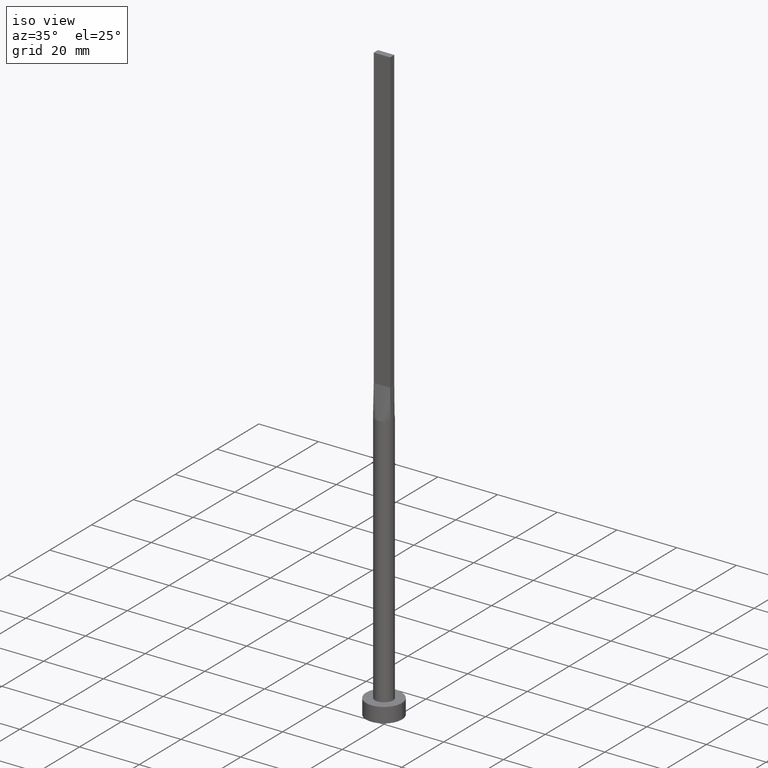
[diagram: clean part render]
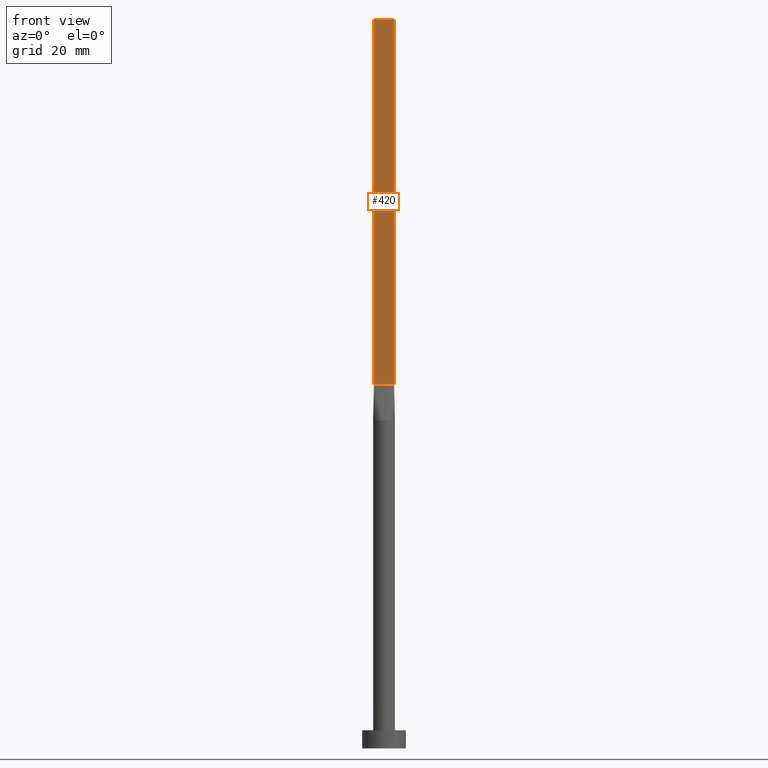
[diagram: tour spotlight — one face highlighted and labeled with its STEP entity id]
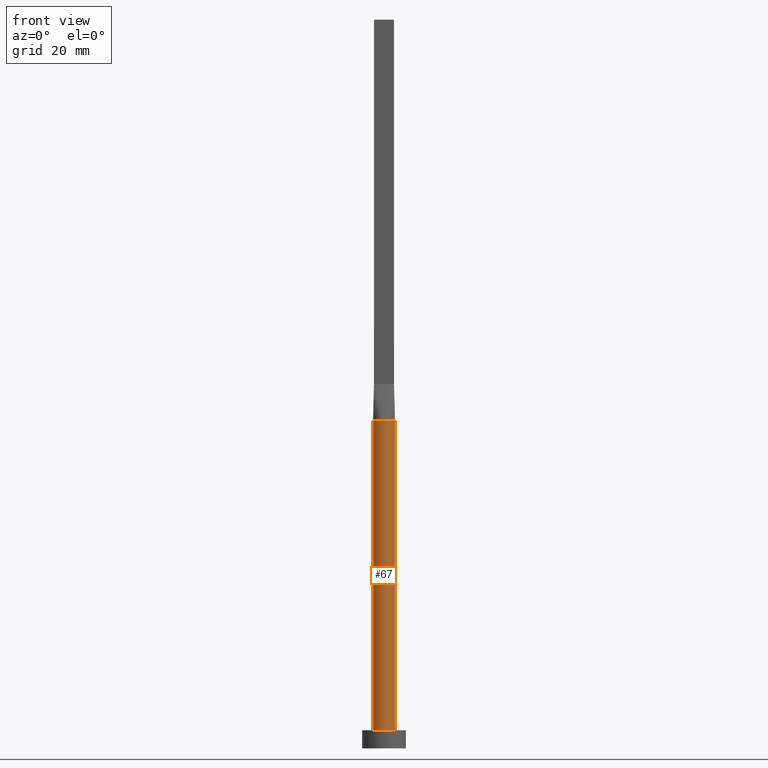
[diagram: tour spotlight — one face highlighted and labeled with its STEP entity id]
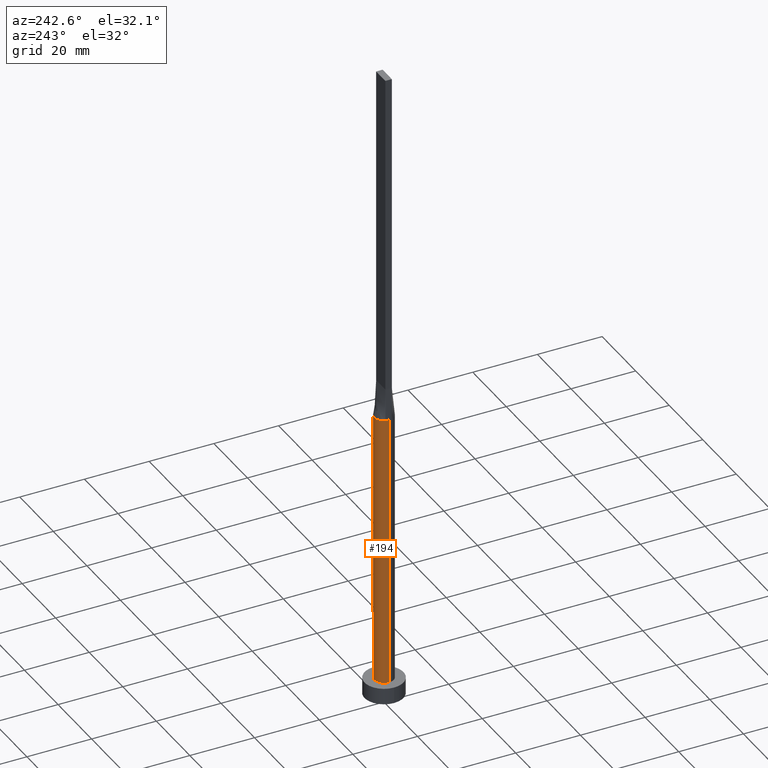
[diagram: tour spotlight — one face highlighted and labeled with its STEP entity id]
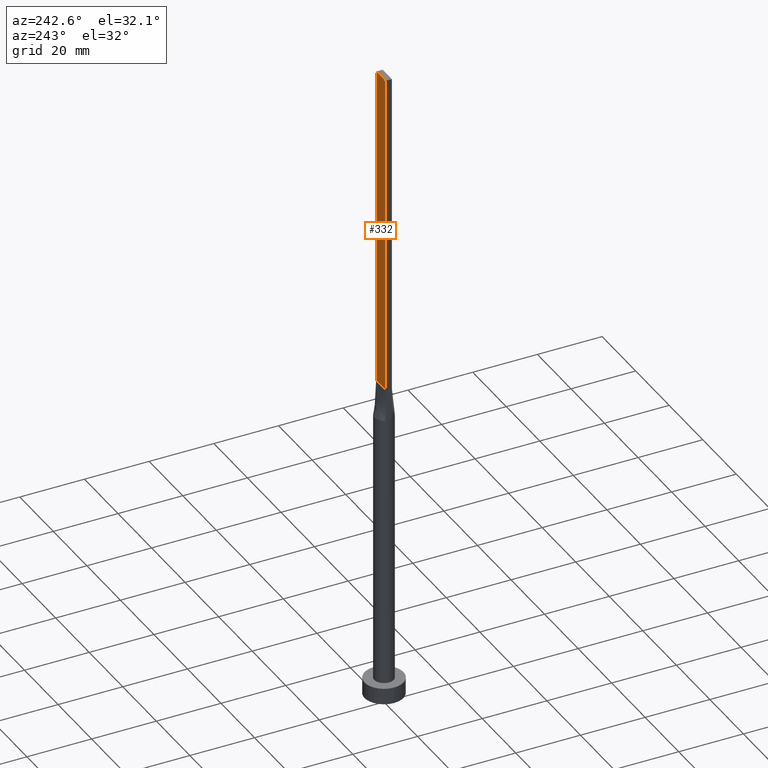
[diagram: tour spotlight — one face highlighted and labeled with its STEP entity id]
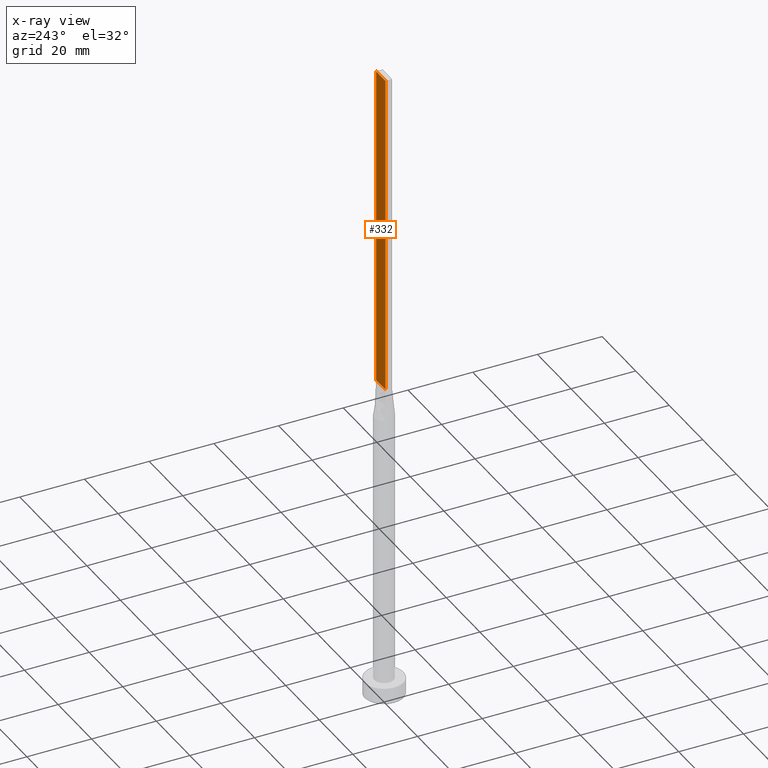
[diagram: x-ray of the same camera — body ghosted, this tour face saturated]
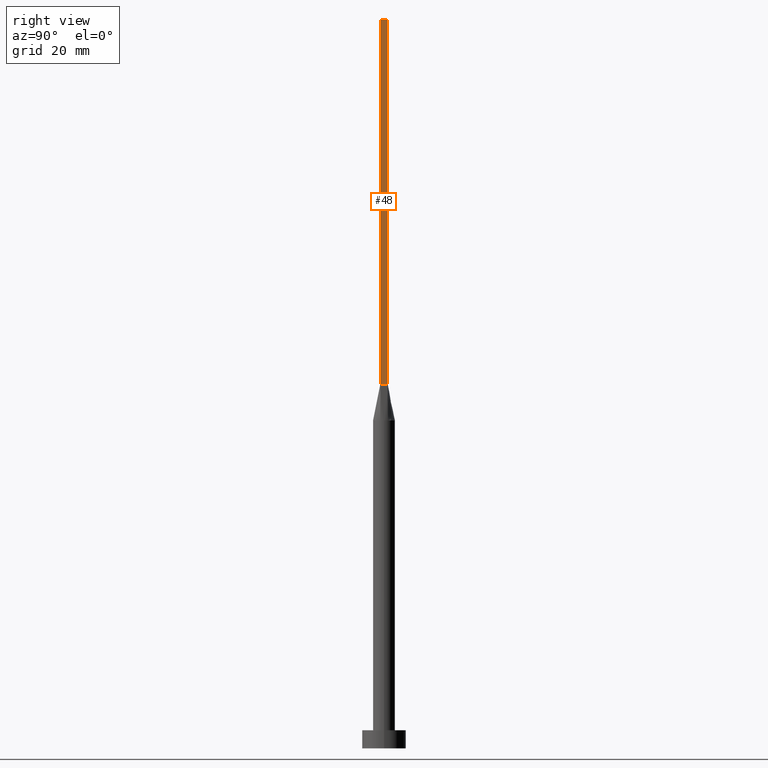
[diagram: tour spotlight — one face highlighted and labeled with its STEP entity id]
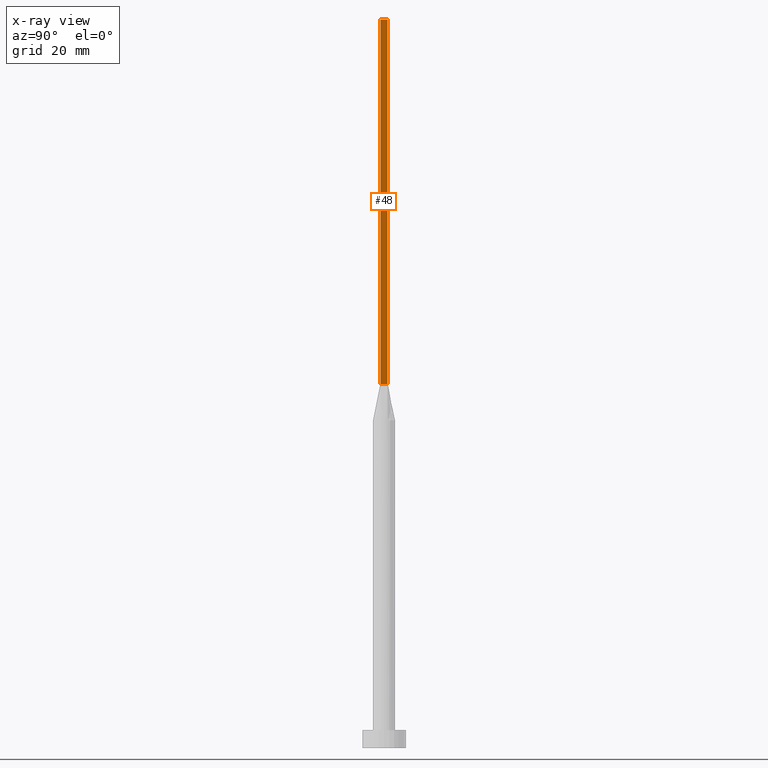
[diagram: x-ray of the same camera — body ghosted, this tour face saturated]
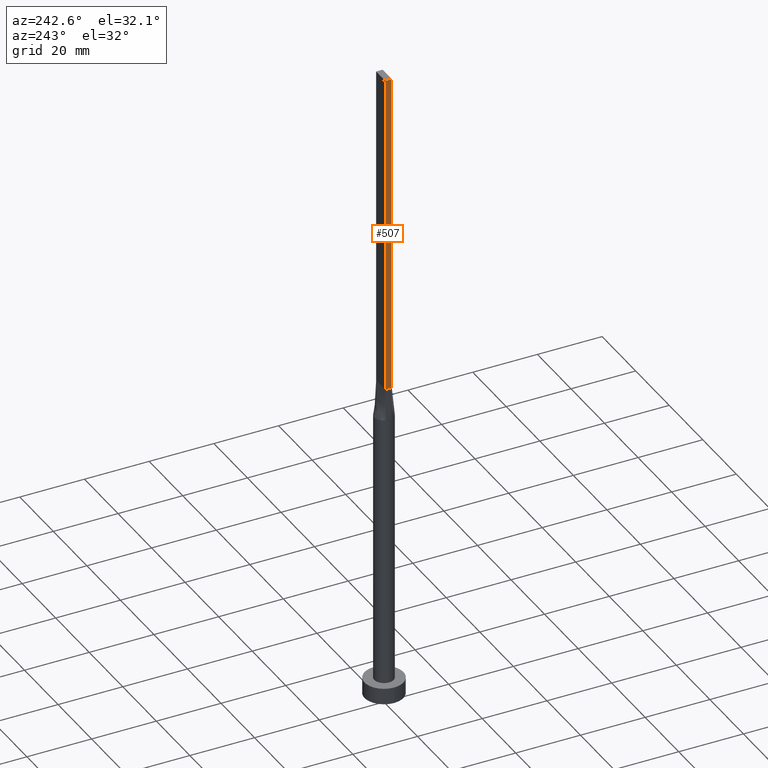
[diagram: tour spotlight — one face highlighted and labeled with its STEP entity id]
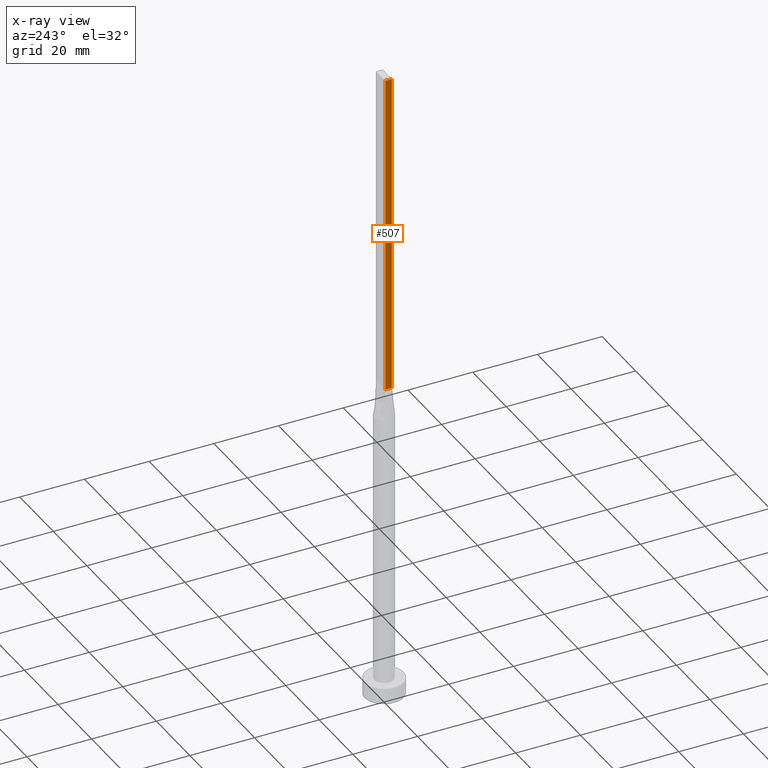
[diagram: x-ray of the same camera — body ghosted, this tour face saturated]
A machine part: a face-by-face anatomy tour. The part has 15 B-rep faces; the first image is the clean iso view, then the 6 largest visible faces are spotlighted one at a time (largest first), each with its STEP entity span.

Face 1 — front view, entity #420. In plain terms, the highlighted planar face has unit normal (0, 1, -0).
Definition (entity closure, byte-faithful):
#9 = DIRECTION ( 'NONE',  ( 7.885106708985487801E-17, 1.000000000000000000, -0.000000000000000000 ) ) ;
#16 = DIRECTION ( 'NONE',  ( 1.000000000000000000, -7.885106708985487801E-17, 0.000000000000000000 ) ) ;
#17 = VECTOR ( 'NONE', #16, 1000.000000000000000 ) ;
#32 = EDGE_CURVE ( 'NONE', #519, #377, #242, .T. ) ;
#45 = ORIENTED_EDGE ( 'NONE', *, *, #59, .F. ) ;
#54 = DIRECTION ( 'NONE',  ( -0.000000000000000000, -0.000000000000000000, -1.000000000000000000 ) ) ;
#58 = LINE ( 'NONE', #511, #310 ) ;
#59 = EDGE_CURVE ( 'NONE', #377, #382, #283, .T. ) ;
#98 = LINE ( 'NONE', #466, #512 ) ;
#126 = EDGE_CURVE ( 'NONE', #519, #235, #98, .T. ) ;
#130 = DIRECTION ( 'NONE',  ( -1.000000000000000000, 7.885106708985487801E-17, 0.000000000000000000 ) ) ;
#139 = AXIS2_PLACEMENT_3D ( 'NONE', #234, #9, #130 ) ;
#183 = ORIENTED_EDGE ( 'NONE', *, *, #318, .T. ) ;
#234 = CARTESIAN_POINT ( 'NONE',  ( -2.750000000000000000, -0.9999999999999993339, 200.0000000000000000 ) ) ;
#235 = VERTEX_POINT ( 'NONE', #533 ) ;
#237 = DIRECTION ( 'NONE',  ( 1.000000000000000000, -7.885106708985487801E-17, 0.000000000000000000 ) ) ;
#242 = LINE ( 'NONE', #313, #17 ) ;
#283 = LINE ( 'NONE', #427, #537 ) ;
#300 = PLANE ( 'NONE',  #139 ) ;
#310 = VECTOR ( 'NONE', #237, 1000.000000000000000 ) ;
#313 = CARTESIAN_POINT ( 'NONE',  ( -2.750000000000000000, -0.9999999999999993339, 200.0000000000000000 ) ) ;
#318 = EDGE_CURVE ( 'NONE', #235, #382, #58, .T. ) ;
#343 = CARTESIAN_POINT ( 'NONE',  ( 2.750000000000000000, -0.9999999999999997780, 100.0000000000000000 ) ) ;
#361 = DIRECTION ( 'NONE',  ( -0.000000000000000000, -0.000000000000000000, -1.000000000000000000 ) ) ;
#377 = VERTEX_POINT ( 'NONE', #397 ) ;
#382 = VERTEX_POINT ( 'NONE', #343 ) ;
#396 = CARTESIAN_POINT ( 'NONE',  ( -2.750000000000000000, -0.9999999999999993339, 200.0000000000000000 ) ) ;
#397 = CARTESIAN_POINT ( 'NONE',  ( 2.750000000000000000, -0.9999999999999997780, 200.0000000000000000 ) ) ;
#420 = ADVANCED_FACE ( 'NONE', ( #539 ), #300, .F. ) ;
#427 = CARTESIAN_POINT ( 'NONE',  ( 2.750000000000000000, -0.9999999999999997780, 200.0000000000000000 ) ) ;
#452 = EDGE_LOOP ( 'NONE', ( #183, #45, #516, #458 ) ) ;
#458 = ORIENTED_EDGE ( 'NONE', *, *, #126, .T. ) ;
#466 = CARTESIAN_POINT ( 'NONE',  ( -2.750000000000000000, -0.9999999999999993339, 200.0000000000000000 ) ) ;
#511 = CARTESIAN_POINT ( 'NONE',  ( -2.750000000000000000, -0.9999999999999993339, 100.0000000000000000 ) ) ;
#512 = VECTOR ( 'NONE', #54, 1000.000000000000000 ) ;
#516 = ORIENTED_EDGE ( 'NONE', *, *, #32, .F. ) ;
#519 = VERTEX_POINT ( 'NONE', #396 ) ;
#533 = CARTESIAN_POINT ( 'NONE',  ( -2.750000000000000000, -0.9999999999999993339, 100.0000000000000000 ) ) ;
#537 = VECTOR ( 'NONE', #361, 1000.000000000000000 ) ;
#539 = FACE_OUTER_BOUND ( 'NONE', #452, .T. ) ;

Face 2 — front view, entity #67. In plain terms, the highlighted cylindrical surface (edge-blend (fillet) strip) has radius 3 mm, axis along (-0, -0, -1).
Definition (entity closure, byte-faithful):
#5 = CARTESIAN_POINT ( 'NONE',  ( 3.000000000000000444, 3.673940397442060361E-16, 5.000000000000000000 ) ) ;
#10 = ORIENTED_EDGE ( 'NONE', *, *, #469, .F. ) ;
#14 = CIRCLE ( 'NONE', #71, 3.000000000000000444 ) ;
#18 = DIRECTION ( 'NONE',  ( 0.000000000000000000, 0.000000000000000000, 1.000000000000000000 ) ) ;
#22 = DIRECTION ( 'NONE',  ( 1.000000000000000000, 0.000000000000000000, 0.000000000000000000 ) ) ;
#37 = LINE ( 'NONE', #433, #258 ) ;
#53 = VERTEX_POINT ( 'NONE', #57 ) ;
#57 = CARTESIAN_POINT ( 'NONE',  ( 3.000000000000000444, 7.514166843208536743E-18, 90.00000000000001421 ) ) ;
#67 = ADVANCED_FACE ( 'NONE', ( #197 ), #143, .T. ) ;
#71 = AXIS2_PLACEMENT_3D ( 'NONE', #264, #351, #538 ) ;
#74 = LINE ( 'NONE', #262, #189 ) ;
#83 = VERTEX_POINT ( 'NONE', #238 ) ;
#87 = EDGE_CURVE ( 'NONE', #83, #478, #227, .T. ) ;
#96 = DIRECTION ( 'NONE',  ( -0.000000000000000000, -0.000000000000000000, -1.000000000000000000 ) ) ;
#132 = DIRECTION ( 'NONE',  ( 0.000000000000000000, 0.000000000000000000, 1.000000000000000000 ) ) ;
#143 = CYLINDRICAL_SURFACE ( 'NONE', #354, 3.000000000000000444 ) ;
#145 = ORIENTED_EDGE ( 'NONE', *, *, #185, .T. ) ;
#155 = CARTESIAN_POINT ( 'NONE',  ( 0.000000000000000000, 0.000000000000000000, 5.000000000000000000 ) ) ;
#167 = VERTEX_POINT ( 'NONE', #499 ) ;
#182 = CARTESIAN_POINT ( 'NONE',  ( 0.000000000000000000, 0.000000000000000000, 90.00000000000001421 ) ) ;
#185 = EDGE_CURVE ( 'NONE', #167, #83, #74, .T. ) ;
#189 = VECTOR ( 'NONE', #249, 1000.000000000000000 ) ;
#193 = ORIENTED_EDGE ( 'NONE', *, *, #395, .F. ) ;
#197 = FACE_OUTER_BOUND ( 'NONE', #413, .T. ) ;
#203 = ORIENTED_EDGE ( 'NONE', *, *, #289, .F. ) ;
#209 = ORIENTED_EDGE ( 'NONE', *, *, #87, .T. ) ;
#214 = AXIS2_PLACEMENT_3D ( 'NONE', #182, #132, #356 ) ;
#224 = VERTEX_POINT ( 'NONE', #495 ) ;
#225 = CIRCLE ( 'NONE', #498, 3.000000000000000444 ) ;
#227 = CIRCLE ( 'NONE', #558, 3.000000000000000444 ) ;
#231 = EDGE_CURVE ( 'NONE', #445, #53, #14, .T. ) ;
#232 = DIRECTION ( 'NONE',  ( 0.000000000000000000, 0.000000000000000000, 1.000000000000000000 ) ) ;
#238 = CARTESIAN_POINT ( 'NONE',  ( -3.000000000000000444, 0.000000000000000000, 5.000000000000000000 ) ) ;
#249 = DIRECTION ( 'NONE',  ( -0.000000000000000000, -0.000000000000000000, -1.000000000000000000 ) ) ;
#258 = VECTOR ( 'NONE', #295, 1000.000000000000000 ) ;
#262 = CARTESIAN_POINT ( 'NONE',  ( -3.000000000000000444, 0.000000000000000000, 90.00000000000001421 ) ) ;
#264 = CARTESIAN_POINT ( 'NONE',  ( 0.000000000000000000, 0.000000000000000000, 90.00000000000001421 ) ) ;
#285 = CARTESIAN_POINT ( 'NONE',  ( 0.000000000000000000, 0.000000000000000000, 90.00000000000001421 ) ) ;
#289 = EDGE_CURVE ( 'NONE', #167, #224, #225, .T. ) ;
#295 = DIRECTION ( 'NONE',  ( -0.000000000000000000, -0.000000000000000000, -1.000000000000000000 ) ) ;
#351 = DIRECTION ( 'NONE',  ( 0.000000000000000000, 0.000000000000000000, 1.000000000000000000 ) ) ;
#354 = AXIS2_PLACEMENT_3D ( 'NONE', #549, #96, #373 ) ;
#356 = DIRECTION ( 'NONE',  ( 1.000000000000000000, 0.000000000000000000, 0.000000000000000000 ) ) ;
#373 = DIRECTION ( 'NONE',  ( -1.000000000000000000, 0.000000000000000000, 0.000000000000000000 ) ) ;
#395 = EDGE_CURVE ( 'NONE', #53, #478, #37, .T. ) ;
#413 = EDGE_LOOP ( 'NONE', ( #193, #534, #10, #203, #145, #209 ) ) ;
#433 = CARTESIAN_POINT ( 'NONE',  ( 3.000000000000000444, 3.673940397442060361E-16, 90.00000000000001421 ) ) ;
#445 = VERTEX_POINT ( 'NONE', #449 ) ;
#449 = CARTESIAN_POINT ( 'NONE',  ( 2.819430526142641558, -1.025247683279450817, 90.00000000000001421 ) ) ;
#459 = DIRECTION ( 'NONE',  ( 1.000000000000000000, 0.000000000000000000, 0.000000000000000000 ) ) ;
#469 = EDGE_CURVE ( 'NONE', #224, #445, #484, .T. ) ;
#478 = VERTEX_POINT ( 'NONE', #5 ) ;
#484 = CIRCLE ( 'NONE', #214, 3.000000000000000444 ) ;
#495 = CARTESIAN_POINT ( 'NONE',  ( -2.819413526938078007, -1.025241406939941369, 90.00000000000001421 ) ) ;
#498 = AXIS2_PLACEMENT_3D ( 'NONE', #285, #18, #22 ) ;
#499 = CARTESIAN_POINT ( 'NONE',  ( -3.000000000000000444, -1.370010780910363192E-16, 90.00000000000001421 ) ) ;
#534 = ORIENTED_EDGE ( 'NONE', *, *, #231, .F. ) ;
#538 = DIRECTION ( 'NONE',  ( 1.000000000000000000, 8.881784197001252323E-16, 0.000000000000000000 ) ) ;
#549 = CARTESIAN_POINT ( 'NONE',  ( 0.000000000000000000, 0.000000000000000000, 90.00000000000001421 ) ) ;
#558 = AXIS2_PLACEMENT_3D ( 'NONE', #155, #232, #459 ) ;

Face 3 — auxiliary view, entity #194. In plain terms, the highlighted cylindrical surface (edge-blend (fillet) strip) has radius 3 mm, axis along (-0, -0, -1).
Definition (entity closure, byte-faithful):
#5 = CARTESIAN_POINT ( 'NONE',  ( 3.000000000000000444, 3.673940397442060361E-16, 5.000000000000000000 ) ) ;
#23 = CARTESIAN_POINT ( 'NONE',  ( 0.000000000000000000, 0.000000000000000000, 90.00000000000001421 ) ) ;
#29 = ORIENTED_EDGE ( 'NONE', *, *, #55, .T. ) ;
#37 = LINE ( 'NONE', #433, #258 ) ;
#40 = CARTESIAN_POINT ( 'NONE',  ( 0.3502136323054376721, 3.000000000000000444, 90.00000000000001421 ) ) ;
#53 = VERTEX_POINT ( 'NONE', #57 ) ;
#55 = EDGE_CURVE ( 'NONE', #478, #83, #261, .T. ) ;
#57 = CARTESIAN_POINT ( 'NONE',  ( 3.000000000000000444, 7.514166843208536743E-18, 90.00000000000001421 ) ) ;
#65 = CARTESIAN_POINT ( 'NONE',  ( -1.627925520694712747, 2.539128397820341831, 90.00000000000000000 ) ) ;
#66 = ORIENTED_EDGE ( 'NONE', *, *, #185, .F. ) ;
#74 = LINE ( 'NONE', #262, #189 ) ;
#76 = CARTESIAN_POINT ( 'NONE',  ( -2.819429393986302657, 1.025247261300842760, 90.00000000000001421 ) ) ;
#83 = VERTEX_POINT ( 'NONE', #238 ) ;
#84 = B_SPLINE_CURVE_WITH_KNOTS ( 'NONE', 3,
 ( #376, #320, #514, #105, #107, #287, #473, #165, #40, #521, #385, #525, #65, #122, #489, #567, #254, #76 ),
 .UNSPECIFIED., .F., .F.,
 ( 4, 2, 2, 2, 2, 2, 2, 2, 4 ),
 ( 0.000000000000000000, 0.1249999999999998890, 0.2499999999999997780, 0.3749999999999997780, 0.4999999999999997780, 0.6249999999999997780, 0.7499999999999997780, 0.8749999999999998890, 1.000000000000000000 ),
 .UNSPECIFIED. ) ;
#86 = VERTEX_POINT ( 'NONE', #317 ) ;
#105 = CARTESIAN_POINT ( 'NONE',  ( 2.314486317179579977, 1.928337902455807384, 90.00000000000002842 ) ) ;
#107 = CARTESIAN_POINT ( 'NONE',  ( 2.115507543051069916, 2.149870311632976705, 90.00000000000001421 ) ) ;
#113 = VERTEX_POINT ( 'NONE', #504 ) ;
#122 = CARTESIAN_POINT ( 'NONE',  ( -2.115507543051069916, 2.149870311632977593, 90.00000000000001421 ) ) ;
#160 = CIRCLE ( 'NONE', #509, 3.000000000000000444 ) ;
#162 = AXIS2_PLACEMENT_3D ( 'NONE', #280, #319, #559 ) ;
#165 = CARTESIAN_POINT ( 'NONE',  ( 0.6998073349918605413, 2.936959335800557014, 89.99999999999997158 ) ) ;
#167 = VERTEX_POINT ( 'NONE', #499 ) ;
#179 = ORIENTED_EDGE ( 'NONE', *, *, #372, .F. ) ;
#180 = CARTESIAN_POINT ( 'NONE',  ( 0.000000000000000000, 0.000000000000000000, 90.00000000000001421 ) ) ;
#185 = EDGE_CURVE ( 'NONE', #167, #83, #74, .T. ) ;
#189 = VECTOR ( 'NONE', #249, 1000.000000000000000 ) ;
#194 = ADVANCED_FACE ( 'NONE', ( #474 ), #428, .T. ) ;
#199 = DIRECTION ( 'NONE',  ( -0.000000000000000000, -0.000000000000000000, -1.000000000000000000 ) ) ;
#238 = CARTESIAN_POINT ( 'NONE',  ( -3.000000000000000444, 0.000000000000000000, 5.000000000000000000 ) ) ;
#249 = DIRECTION ( 'NONE',  ( -0.000000000000000000, -0.000000000000000000, -1.000000000000000000 ) ) ;
#254 = CARTESIAN_POINT ( 'NONE',  ( -2.739088299662392423, 1.246032108968142316, 90.00000000000002842 ) ) ;
#258 = VECTOR ( 'NONE', #295, 1000.000000000000000 ) ;
#260 = EDGE_CURVE ( 'NONE', #113, #167, #160, .T. ) ;
#261 = CIRCLE ( 'NONE', #162, 3.000000000000000444 ) ;
#262 = CARTESIAN_POINT ( 'NONE',  ( -3.000000000000000444, 0.000000000000000000, 90.00000000000001421 ) ) ;
#280 = CARTESIAN_POINT ( 'NONE',  ( 0.000000000000000000, 0.000000000000000000, 5.000000000000000000 ) ) ;
#287 = CARTESIAN_POINT ( 'NONE',  ( 1.627925520694712080, 2.539128397820340943, 90.00000000000001421 ) ) ;
#291 = DIRECTION ( 'NONE',  ( -1.000000000000000000, 0.000000000000000000, 0.000000000000000000 ) ) ;
#295 = DIRECTION ( 'NONE',  ( -0.000000000000000000, -0.000000000000000000, -1.000000000000000000 ) ) ;
#297 = AXIS2_PLACEMENT_3D ( 'NONE', #23, #199, #291 ) ;
#316 = DIRECTION ( 'NONE',  ( 1.000000000000000000, 0.000000000000000000, 0.000000000000000000 ) ) ;
#317 = CARTESIAN_POINT ( 'NONE',  ( 2.819412401233197141, 1.025240989080170806, 90.00000000000001421 ) ) ;
#319 = DIRECTION ( 'NONE',  ( 0.000000000000000000, 0.000000000000000000, 1.000000000000000000 ) ) ;
#320 = CARTESIAN_POINT ( 'NONE',  ( 2.739088299662392867, 1.246032108968142538, 90.00000000000002842 ) ) ;
#360 = CARTESIAN_POINT ( 'NONE',  ( 0.000000000000000000, 0.000000000000000000, 90.00000000000001421 ) ) ;
#372 = EDGE_CURVE ( 'NONE', #86, #113, #84, .T. ) ;
#376 = CARTESIAN_POINT ( 'NONE',  ( 2.819412401233197141, 1.025240989080170806, 90.00000000000001421 ) ) ;
#383 = ORIENTED_EDGE ( 'NONE', *, *, #260, .F. ) ;
#385 = CARTESIAN_POINT ( 'NONE',  ( -0.6998073349918608743, 2.936959335800557014, 90.00000000000000000 ) ) ;
#386 = ORIENTED_EDGE ( 'NONE', *, *, #395, .T. ) ;
#395 = EDGE_CURVE ( 'NONE', #53, #478, #37, .T. ) ;
#428 = CYLINDRICAL_SURFACE ( 'NONE', #297, 3.000000000000000444 ) ;
#433 = CARTESIAN_POINT ( 'NONE',  ( 3.000000000000000444, 3.673940397442060361E-16, 90.00000000000001421 ) ) ;
#447 = AXIS2_PLACEMENT_3D ( 'NONE', #180, #543, #580 ) ;
#473 = CARTESIAN_POINT ( 'NONE',  ( 1.338960936578149630, 2.706038443291637563, 90.00000000000000000 ) ) ;
#474 = FACE_OUTER_BOUND ( 'NONE', #520, .T. ) ;
#478 = VERTEX_POINT ( 'NONE', #5 ) ;
#489 = CARTESIAN_POINT ( 'NONE',  ( -2.314486317179579977, 1.928337902455808051, 90.00000000000001421 ) ) ;
#499 = CARTESIAN_POINT ( 'NONE',  ( -3.000000000000000444, -1.370010780910363192E-16, 90.00000000000001421 ) ) ;
#504 = CARTESIAN_POINT ( 'NONE',  ( -2.819429393986302657, 1.025247261300842760, 90.00000000000001421 ) ) ;
#509 = AXIS2_PLACEMENT_3D ( 'NONE', #360, #548, #316 ) ;
#514 = CARTESIAN_POINT ( 'NONE',  ( 2.625980160873452540, 1.476334031700886618, 90.00000000000001421 ) ) ;
#520 = EDGE_LOOP ( 'NONE', ( #540, #386, #29, #66, #383, #179 ) ) ;
#521 = CARTESIAN_POINT ( 'NONE',  ( -0.3502136323054376721, 2.999999999999999112, 90.00000000000002842 ) ) ;
#525 = CARTESIAN_POINT ( 'NONE',  ( -1.338960936578149408, 2.706038443291637119, 90.00000000000000000 ) ) ;
#540 = ORIENTED_EDGE ( 'NONE', *, *, #571, .F. ) ;
#543 = DIRECTION ( 'NONE',  ( 0.000000000000000000, 0.000000000000000000, 1.000000000000000000 ) ) ;
#548 = DIRECTION ( 'NONE',  ( 0.000000000000000000, 0.000000000000000000, 1.000000000000000000 ) ) ;
#559 = DIRECTION ( 'NONE',  ( 1.000000000000000000, 0.000000000000000000, 0.000000000000000000 ) ) ;
#566 = CIRCLE ( 'NONE', #447, 3.000000000000000444 ) ;
#567 = CARTESIAN_POINT ( 'NONE',  ( -2.625980160873452096, 1.476334031700886396, 90.00000000000001421 ) ) ;
#571 = EDGE_CURVE ( 'NONE', #53, #86, #566, .T. ) ;
#580 = DIRECTION ( 'NONE',  ( 1.000000000000000000, 0.000000000000000000, 0.000000000000000000 ) ) ;

Face 4 — auxiliary view, entity #332. An x-ray twin of the same camera follows (body ghosted, this face saturated) — the face is partly hidden behind the body. In plain terms, the highlighted planar face has unit normal (0, -1, 0).
Definition (entity closure, byte-faithful):
#39 = CARTESIAN_POINT ( 'NONE',  ( 2.749999999999999556, 1.000000000000000000, 100.0000000000000000 ) ) ;
#60 = DIRECTION ( 'NONE',  ( 0.000000000000000000, -1.000000000000000000, 0.000000000000000000 ) ) ;
#62 = VECTOR ( 'NONE', #303, 1000.000000000000000 ) ;
#73 = VERTEX_POINT ( 'NONE', #101 ) ;
#77 = DIRECTION ( 'NONE',  ( -1.000000000000000000, 0.000000000000000000, 0.000000000000000000 ) ) ;
#90 = CARTESIAN_POINT ( 'NONE',  ( -2.749999999999999556, 1.000000000000000000, 200.0000000000000000 ) ) ;
#93 = LINE ( 'NONE', #364, #125 ) ;
#101 = CARTESIAN_POINT ( 'NONE',  ( -2.749999999999999556, 1.000000000000000000, 100.0000000000000000 ) ) ;
#104 = CARTESIAN_POINT ( 'NONE',  ( -2.749999999999999556, 1.000000000000000000, 100.0000000000000000 ) ) ;
#125 = VECTOR ( 'NONE', #77, 1000.000000000000000 ) ;
#136 = LINE ( 'NONE', #90, #62 ) ;
#137 = ORIENTED_EDGE ( 'NONE', *, *, #436, .F. ) ;
#147 = CARTESIAN_POINT ( 'NONE',  ( 2.749999999999999556, 1.000000000000000000, 200.0000000000000000 ) ) ;
#150 = EDGE_CURVE ( 'NONE', #333, #172, #579, .T. ) ;
#171 = EDGE_CURVE ( 'NONE', #333, #391, #93, .T. ) ;
#172 = VERTEX_POINT ( 'NONE', #39 ) ;
#191 = DIRECTION ( 'NONE',  ( 0.000000000000000000, -0.000000000000000000, -1.000000000000000000 ) ) ;
#198 = PLANE ( 'NONE',  #350 ) ;
#226 = CARTESIAN_POINT ( 'NONE',  ( 2.749999999999999556, 1.000000000000000000, 200.0000000000000000 ) ) ;
#243 = FACE_OUTER_BOUND ( 'NONE', #334, .T. ) ;
#265 = CARTESIAN_POINT ( 'NONE',  ( -2.749999999999999556, 1.000000000000000000, 200.0000000000000000 ) ) ;
#298 = VECTOR ( 'NONE', #345, 1000.000000000000000 ) ;
#303 = DIRECTION ( 'NONE',  ( -0.000000000000000000, -0.000000000000000000, -1.000000000000000000 ) ) ;
#327 = ORIENTED_EDGE ( 'NONE', *, *, #500, .T. ) ;
#332 = ADVANCED_FACE ( 'NONE', ( #243 ), #198, .F. ) ;
#333 = VERTEX_POINT ( 'NONE', #147 ) ;
#334 = EDGE_LOOP ( 'NONE', ( #327, #137, #347, #570 ) ) ;
#345 = DIRECTION ( 'NONE',  ( -0.000000000000000000, -0.000000000000000000, -1.000000000000000000 ) ) ;
#347 = ORIENTED_EDGE ( 'NONE', *, *, #171, .F. ) ;
#350 = AXIS2_PLACEMENT_3D ( 'NONE', #421, #60, #191 ) ;
#364 = CARTESIAN_POINT ( 'NONE',  ( 2.749999999999999556, 1.000000000000000000, 200.0000000000000000 ) ) ;
#391 = VERTEX_POINT ( 'NONE', #265 ) ;
#421 = CARTESIAN_POINT ( 'NONE',  ( 2.749999999999999556, 1.000000000000000000, 200.0000000000000000 ) ) ;
#436 = EDGE_CURVE ( 'NONE', #391, #73, #136, .T. ) ;
#500 = EDGE_CURVE ( 'NONE', #172, #73, #513, .T. ) ;
#513 = LINE ( 'NONE', #104, #547 ) ;
#547 = VECTOR ( 'NONE', #555, 1000.000000000000000 ) ;
#555 = DIRECTION ( 'NONE',  ( -1.000000000000000000, -0.000000000000000000, -0.000000000000000000 ) ) ;
#570 = ORIENTED_EDGE ( 'NONE', *, *, #150, .T. ) ;
#579 = LINE ( 'NONE', #226, #298 ) ;

Face 5 — right view, entity #48. An x-ray twin of the same camera follows (body ghosted, this face saturated) — the face is partly hidden behind the body. In plain terms, the highlighted planar face has unit normal (-1, -0, 0).
Definition (entity closure, byte-faithful):
#39 = CARTESIAN_POINT ( 'NONE',  ( 2.749999999999999556, 1.000000000000000000, 100.0000000000000000 ) ) ;
#41 = EDGE_LOOP ( 'NONE', ( #527, #118, #353, #403 ) ) ;
#48 = ADVANCED_FACE ( 'NONE', ( #508 ), #556, .F. ) ;
#50 = DIRECTION ( 'NONE',  ( -2.168404344971008868E-16, 1.000000000000000000, 0.000000000000000000 ) ) ;
#59 = EDGE_CURVE ( 'NONE', #377, #382, #283, .T. ) ;
#118 = ORIENTED_EDGE ( 'NONE', *, *, #150, .F. ) ;
#120 = VECTOR ( 'NONE', #492, 1000.000000000000000 ) ;
#147 = CARTESIAN_POINT ( 'NONE',  ( 2.749999999999999556, 1.000000000000000000, 200.0000000000000000 ) ) ;
#148 = VECTOR ( 'NONE', #50, 1000.000000000000000 ) ;
#150 = EDGE_CURVE ( 'NONE', #333, #172, #579, .T. ) ;
#151 = CARTESIAN_POINT ( 'NONE',  ( 2.750000000000000000, -0.9999999999999997780, 200.0000000000000000 ) ) ;
#172 = VERTEX_POINT ( 'NONE', #39 ) ;
#192 = DIRECTION ( 'NONE',  ( 2.168404344971008868E-16, -1.000000000000000000, 0.000000000000000000 ) ) ;
#206 = AXIS2_PLACEMENT_3D ( 'NONE', #151, #244, #192 ) ;
#219 = CARTESIAN_POINT ( 'NONE',  ( 2.749999999999999556, 1.000000000000000000, 100.0000000000000000 ) ) ;
#222 = EDGE_CURVE ( 'NONE', #382, #172, #493, .T. ) ;
#226 = CARTESIAN_POINT ( 'NONE',  ( 2.749999999999999556, 1.000000000000000000, 200.0000000000000000 ) ) ;
#244 = DIRECTION ( 'NONE',  ( -1.000000000000000000, -2.168404344971008868E-16, 0.000000000000000000 ) ) ;
#268 = LINE ( 'NONE', #410, #148 ) ;
#283 = LINE ( 'NONE', #427, #537 ) ;
#298 = VECTOR ( 'NONE', #345, 1000.000000000000000 ) ;
#333 = VERTEX_POINT ( 'NONE', #147 ) ;
#343 = CARTESIAN_POINT ( 'NONE',  ( 2.750000000000000000, -0.9999999999999997780, 100.0000000000000000 ) ) ;
#345 = DIRECTION ( 'NONE',  ( -0.000000000000000000, -0.000000000000000000, -1.000000000000000000 ) ) ;
#353 = ORIENTED_EDGE ( 'NONE', *, *, #462, .F. ) ;
#361 = DIRECTION ( 'NONE',  ( -0.000000000000000000, -0.000000000000000000, -1.000000000000000000 ) ) ;
#377 = VERTEX_POINT ( 'NONE', #397 ) ;
#382 = VERTEX_POINT ( 'NONE', #343 ) ;
#397 = CARTESIAN_POINT ( 'NONE',  ( 2.750000000000000000, -0.9999999999999997780, 200.0000000000000000 ) ) ;
#403 = ORIENTED_EDGE ( 'NONE', *, *, #59, .T. ) ;
#410 = CARTESIAN_POINT ( 'NONE',  ( 2.750000000000000000, -0.9999999999999997780, 200.0000000000000000 ) ) ;
#427 = CARTESIAN_POINT ( 'NONE',  ( 2.750000000000000000, -0.9999999999999997780, 200.0000000000000000 ) ) ;
#462 = EDGE_CURVE ( 'NONE', #377, #333, #268, .T. ) ;
#492 = DIRECTION ( 'NONE',  ( -2.168404344971008868E-16, 1.000000000000000000, -0.000000000000000000 ) ) ;
#493 = LINE ( 'NONE', #219, #120 ) ;
#508 = FACE_OUTER_BOUND ( 'NONE', #41, .T. ) ;
#527 = ORIENTED_EDGE ( 'NONE', *, *, #222, .T. ) ;
#537 = VECTOR ( 'NONE', #361, 1000.000000000000000 ) ;
#556 = PLANE ( 'NONE',  #206 ) ;
#579 = LINE ( 'NONE', #226, #298 ) ;

Face 6 — auxiliary view, entity #507. An x-ray twin of the same camera follows (body ghosted, this face saturated) — the face is partly hidden behind the body. In plain terms, the highlighted planar face has unit normal (1, -0, 0).
Definition (entity closure, byte-faithful):
#11 = CARTESIAN_POINT ( 'NONE',  ( -2.749999999999999556, 1.000000000000000000, 100.0000000000000000 ) ) ;
#54 = DIRECTION ( 'NONE',  ( -0.000000000000000000, -0.000000000000000000, -1.000000000000000000 ) ) ;
#62 = VECTOR ( 'NONE', #303, 1000.000000000000000 ) ;
#73 = VERTEX_POINT ( 'NONE', #101 ) ;
#90 = CARTESIAN_POINT ( 'NONE',  ( -2.749999999999999556, 1.000000000000000000, 200.0000000000000000 ) ) ;
#98 = LINE ( 'NONE', #466, #512 ) ;
#101 = CARTESIAN_POINT ( 'NONE',  ( -2.749999999999999556, 1.000000000000000000, 100.0000000000000000 ) ) ;
#103 = EDGE_CURVE ( 'NONE', #73, #235, #415, .T. ) ;
#109 = VECTOR ( 'NONE', #228, 1000.000000000000000 ) ;
#126 = EDGE_CURVE ( 'NONE', #519, #235, #98, .T. ) ;
#136 = LINE ( 'NONE', #90, #62 ) ;
#153 = CARTESIAN_POINT ( 'NONE',  ( -2.749999999999999556, 1.000000000000000000, 200.0000000000000000 ) ) ;
#184 = DIRECTION ( 'NONE',  ( -2.168404344971009854E-16, -1.000000000000000000, 0.000000000000000000 ) ) ;
#196 = AXIS2_PLACEMENT_3D ( 'NONE', #153, #431, #314 ) ;
#217 = LINE ( 'NONE', #401, #109 ) ;
#228 = DIRECTION ( 'NONE',  ( -2.168404344971009854E-16, -1.000000000000000000, 0.000000000000000000 ) ) ;
#235 = VERTEX_POINT ( 'NONE', #533 ) ;
#251 = PLANE ( 'NONE',  #196 ) ;
#265 = CARTESIAN_POINT ( 'NONE',  ( -2.749999999999999556, 1.000000000000000000, 200.0000000000000000 ) ) ;
#293 = VECTOR ( 'NONE', #184, 1000.000000000000000 ) ;
#294 = ORIENTED_EDGE ( 'NONE', *, *, #126, .F. ) ;
#301 = ORIENTED_EDGE ( 'NONE', *, *, #436, .T. ) ;
#303 = DIRECTION ( 'NONE',  ( -0.000000000000000000, -0.000000000000000000, -1.000000000000000000 ) ) ;
#314 = DIRECTION ( 'NONE',  ( 2.168404344971010101E-16, 1.000000000000000000, 0.000000000000000000 ) ) ;
#391 = VERTEX_POINT ( 'NONE', #265 ) ;
#396 = CARTESIAN_POINT ( 'NONE',  ( -2.750000000000000000, -0.9999999999999993339, 200.0000000000000000 ) ) ;
#401 = CARTESIAN_POINT ( 'NONE',  ( -2.749999999999999556, 1.000000000000000000, 200.0000000000000000 ) ) ;
#415 = LINE ( 'NONE', #11, #293 ) ;
#431 = DIRECTION ( 'NONE',  ( 1.000000000000000000, -2.168404344971010101E-16, 0.000000000000000000 ) ) ;
#436 = EDGE_CURVE ( 'NONE', #391, #73, #136, .T. ) ;
#466 = CARTESIAN_POINT ( 'NONE',  ( -2.750000000000000000, -0.9999999999999993339, 200.0000000000000000 ) ) ;
#475 = FACE_OUTER_BOUND ( 'NONE', #490, .T. ) ;
#482 = ORIENTED_EDGE ( 'NONE', *, *, #103, .T. ) ;
#490 = EDGE_LOOP ( 'NONE', ( #482, #294, #526, #301 ) ) ;
#507 = ADVANCED_FACE ( 'NONE', ( #475 ), #251, .F. ) ;
#512 = VECTOR ( 'NONE', #54, 1000.000000000000000 ) ;
#519 = VERTEX_POINT ( 'NONE', #396 ) ;
#526 = ORIENTED_EDGE ( 'NONE', *, *, #542, .F. ) ;
#533 = CARTESIAN_POINT ( 'NONE',  ( -2.750000000000000000, -0.9999999999999993339, 100.0000000000000000 ) ) ;
#542 = EDGE_CURVE ( 'NONE', #391, #519, #217, .T. ) ;